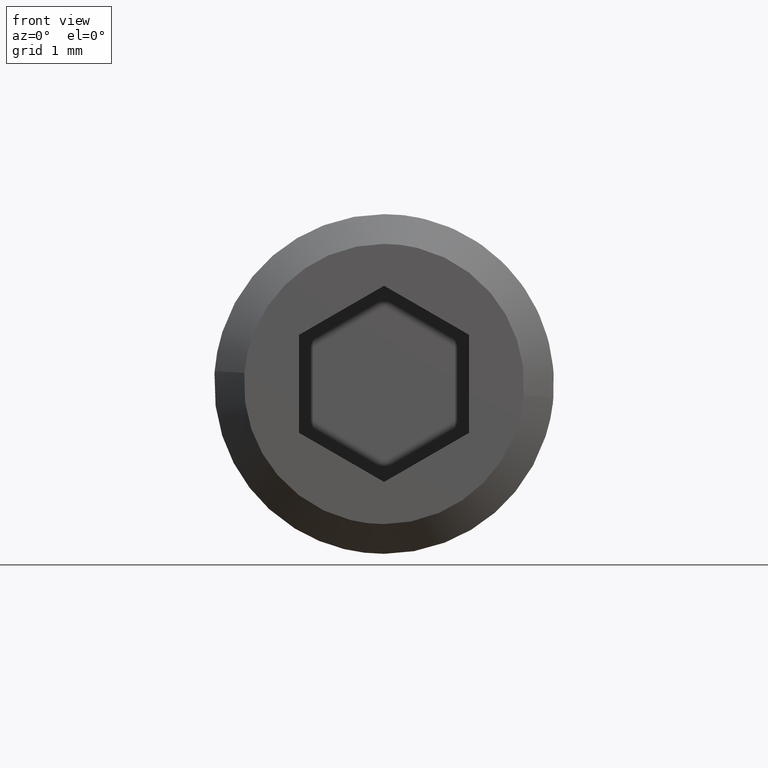
[diagram: clean part render]
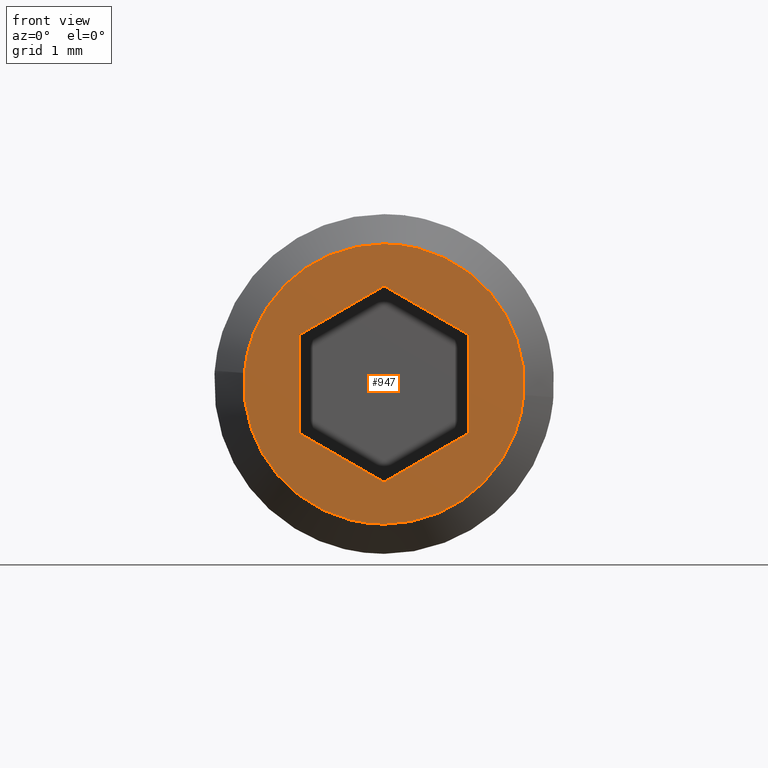
[diagram: same view with one face highlighted and labeled with its STEP entity id]
A machine part, front view. The second image highlights one B-rep face of the part: STEP entity #947.
In plain terms, the highlighted face is a freeform B-spline surface patch.
Its self-contained STEP definition (entity closure, byte-faithful):
#610=CARTESIAN_POINT('',(0.0,-6.500000000000000,-1.650000000000000));
#611=VERTEX_POINT('',#610);
#612=CARTESIAN_POINT('',(1.644913600659771,-6.499999999999707,-0.129457507953156));
#613=VERTEX_POINT('',#612);
#614=CARTESIAN_POINT('',(0.0,-6.500000000000000,-1.650000000000000));
#615=CARTESIAN_POINT('',(1.525244311231972,-6.500000000000002,-1.650000000000000));
#616=CARTESIAN_POINT('',(1.644913600659771,-6.499999999999707,-0.129457507953156));
#624=(BOUNDED_CURVE()B_SPLINE_CURVE(2,(#614,#615,#616),.UNSPECIFIED.,.F.,.U.)B_SPLINE_CURVE_WITH_KNOTS((3,3),(0.0,0.236331300632311),.UNSPECIFIED.)CURVE()GEOMETRIC_REPRESENTATION_ITEM()RATIONAL_B_SPLINE_CURVE((1.0,0.723120658605731,0.969723356170864))REPRESENTATION_ITEM(''));
#625=EDGE_CURVE('',#611,#613,#624,.T.);
#627=CARTESIAN_POINT('',(-1.644913600659772,-6.499999999999707,0.129457507953154));
#628=VERTEX_POINT('',#627);
#629=CARTESIAN_POINT('',(-1.644913600659772,-6.499999999999707,0.129457507953154));
#630=CARTESIAN_POINT('',(-1.650000000000000,-6.500000000000000,0.064828676564852));
#631=CARTESIAN_POINT('',(-1.650000000000000,-6.500000000000000,-4.439198E-016));
#632=CARTESIAN_POINT('',(-1.649999999999999,-6.500000000000001,-1.650000000000001));
#633=CARTESIAN_POINT('',(0.0,-6.500000000000000,-1.650000000000000));
#641=(BOUNDED_CURVE()B_SPLINE_CURVE(2,(#629,#630,#631,#632,#633),.UNSPECIFIED.,.F.,.U.)B_SPLINE_CURVE_WITH_KNOTS((3,2,3),(0.736331300632311,0.750000000000000,1.0),.UNSPECIFIED.)CURVE()GEOMETRIC_REPRESENTATION_ITEM()RATIONAL_B_SPLINE_CURVE((0.969723356170864,0.983986122580817,1.0,0.707106781186548,1.0))REPRESENTATION_ITEM(''));
#642=EDGE_CURVE('',#628,#611,#641,.T.);
#679=CARTESIAN_POINT('',(0.0,-6.500000000000000,1.650000000000000));
#680=VERTEX_POINT('',#679);
#681=CARTESIAN_POINT('',(1.644913600659771,-6.499999999999707,-0.129457507953156));
#682=CARTESIAN_POINT('',(1.650000000000000,-6.500000000000000,-0.064828676564854));
#683=CARTESIAN_POINT('',(1.650000000000000,-6.500000000000000,-4.439198E-016));
#684=CARTESIAN_POINT('',(1.649999999999999,-6.500000000000001,1.649999999999999));
#685=CARTESIAN_POINT('',(0.0,-6.500000000000000,1.650000000000000));
#693=(BOUNDED_CURVE()B_SPLINE_CURVE(2,(#681,#682,#683,#684,#685),.UNSPECIFIED.,.F.,.U.)B_SPLINE_CURVE_WITH_KNOTS((3,2,3),(0.236331300632311,0.250000000000000,0.500000000000000),.UNSPECIFIED.)CURVE()GEOMETRIC_REPRESENTATION_ITEM()RATIONAL_B_SPLINE_CURVE((0.969723356170864,0.983986122580816,1.0,0.707106781186548,1.0))REPRESENTATION_ITEM(''));
#694=EDGE_CURVE('',#613,#680,#693,.T.);
#700=CARTESIAN_POINT('',(0.0,-6.500000000000000,1.650000000000000));
#701=CARTESIAN_POINT('',(-1.525244311231972,-6.500000000000000,1.650000000000000));
#702=CARTESIAN_POINT('',(-1.644913600659772,-6.499999999999707,0.129457507953154));
#710=(BOUNDED_CURVE()B_SPLINE_CURVE(2,(#700,#701,#702),.UNSPECIFIED.,.F.,.U.)B_SPLINE_CURVE_WITH_KNOTS((3,3),(0.500000000000000,0.736331300632311),.UNSPECIFIED.)CURVE()GEOMETRIC_REPRESENTATION_ITEM()RATIONAL_B_SPLINE_CURVE((1.0,0.723120658605731,0.969723356170864))REPRESENTATION_ITEM(''));
#711=EDGE_CURVE('',#680,#628,#710,.T.);
#783=CARTESIAN_POINT('',(1.0,-6.500000000000000,0.577350000000000));
#784=VERTEX_POINT('',#783);
#785=CARTESIAN_POINT('',(0.0,-6.500000000000000,1.154701000000000));
#786=VERTEX_POINT('',#785);
#787=CARTESIAN_POINT('',(1.0,-6.500000000000000,0.577350000000000));
#788=CARTESIAN_POINT('',(0.0,-6.500000000000000,1.154701000000000));
#789=QUASI_UNIFORM_CURVE('',1,(#787,#788),.UNSPECIFIED.,.F.,.U.);
#790=EDGE_CURVE('',#784,#786,#789,.T.);
#811=CARTESIAN_POINT('',(1.0,-6.500000000000000,-0.577350000000017));
#812=VERTEX_POINT('',#811);
#813=CARTESIAN_POINT('',(1.0,-6.500000000000000,-0.577350000000017));
#814=CARTESIAN_POINT('',(1.0,-6.500000000000000,0.577350000000000));
#815=QUASI_UNIFORM_CURVE('',1,(#813,#814),.UNSPECIFIED.,.F.,.U.);
#816=EDGE_CURVE('',#812,#784,#815,.T.);
#833=CARTESIAN_POINT('',(0.0,-6.500000000000000,-1.154701000000000));
#834=VERTEX_POINT('',#833);
#835=CARTESIAN_POINT('',(0.0,-6.500000000000000,-1.154701000000000));
#836=CARTESIAN_POINT('',(1.0,-6.500000000000000,-0.577350000000017));
#837=QUASI_UNIFORM_CURVE('',1,(#835,#836),.UNSPECIFIED.,.F.,.U.);
#838=EDGE_CURVE('',#834,#812,#837,.T.);
#855=CARTESIAN_POINT('',(-1.0,-6.500000000000000,-0.577350000000017));
#856=VERTEX_POINT('',#855);
#857=CARTESIAN_POINT('',(-1.0,-6.500000000000000,-0.577350000000017));
#858=CARTESIAN_POINT('',(0.0,-6.500000000000000,-1.154701000000000));
#859=QUASI_UNIFORM_CURVE('',1,(#857,#858),.UNSPECIFIED.,.F.,.U.);
#860=EDGE_CURVE('',#856,#834,#859,.T.);
#877=CARTESIAN_POINT('',(-1.0,-6.500000000000000,0.577350000000000));
#878=VERTEX_POINT('',#877);
#879=CARTESIAN_POINT('',(-1.0,-6.500000000000000,0.577350000000000));
#880=CARTESIAN_POINT('',(-1.0,-6.500000000000000,-0.577350000000017));
#881=QUASI_UNIFORM_CURVE('',1,(#879,#880),.UNSPECIFIED.,.F.,.U.);
#882=EDGE_CURVE('',#878,#856,#881,.T.);
#899=CARTESIAN_POINT('',(0.0,-6.500000000000000,1.154701000000000));
#900=CARTESIAN_POINT('',(-1.0,-6.500000000000000,0.577350000000000));
#901=QUASI_UNIFORM_CURVE('',1,(#899,#900),.UNSPECIFIED.,.F.,.U.);
#902=EDGE_CURVE('',#786,#878,#901,.T.);
#928=CARTESIAN_POINT('',(-1.814331206297231,-6.500000000000000,-1.814834993603960));
#929=CARTESIAN_POINT('',(-1.814331206297231,-6.500000000000000,1.814835082116857));
#930=CARTESIAN_POINT('',(1.814331176792932,-6.500000000000000,-1.814834993603960));
#931=CARTESIAN_POINT('',(1.814331176792932,-6.500000000000000,1.814835082116857));
#932=B_SPLINE_SURFACE_WITH_KNOTS('',1,1,((#928,#930),(#929,#931)),.UNSPECIFIED.,.F.,.F.,.U.,(2,2),(2,2),(0.0,3.629670075720817),(0.0,3.628662383090163),.UNSPECIFIED.);
#933=ORIENTED_EDGE('',*,*,#625,.T.);
#934=ORIENTED_EDGE('',*,*,#694,.T.);
#935=ORIENTED_EDGE('',*,*,#711,.T.);
#936=ORIENTED_EDGE('',*,*,#642,.T.);
#937=EDGE_LOOP('',(#933,#934,#935,#936));
#938=FACE_OUTER_BOUND('',#937,.T.);
#939=ORIENTED_EDGE('',*,*,#882,.F.);
#940=ORIENTED_EDGE('',*,*,#902,.F.);
#941=ORIENTED_EDGE('',*,*,#790,.F.);
#942=ORIENTED_EDGE('',*,*,#816,.F.);
#943=ORIENTED_EDGE('',*,*,#838,.F.);
#944=ORIENTED_EDGE('',*,*,#860,.F.);
#945=EDGE_LOOP('',(#939,#940,#941,#942,#943,#944));
#946=FACE_BOUND('',#945,.T.);
#947=ADVANCED_FACE('',(#938,#946),#932,.F.);